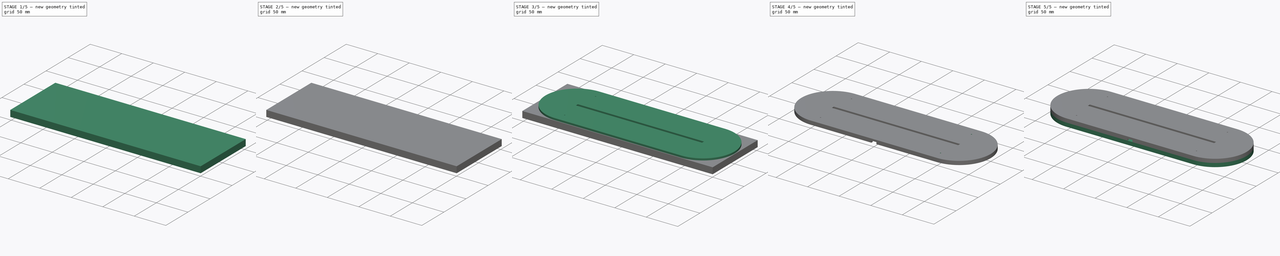
[diagram: build sequence overview — one tinted view per stage of 5, left to right]
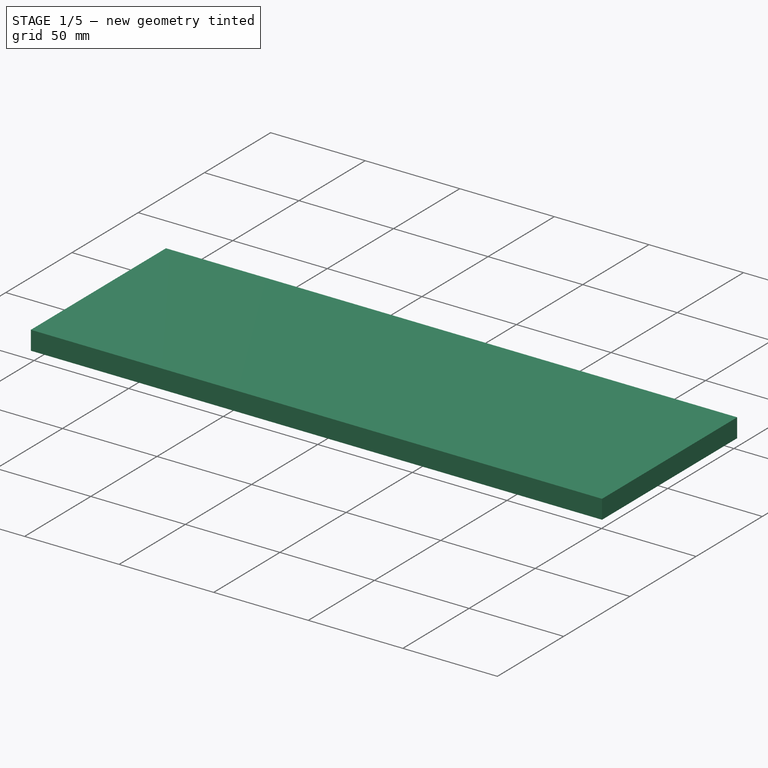
[diagram: stage 1 of 5 — iso view after this stage's code; geometry added in this stage tinted green]
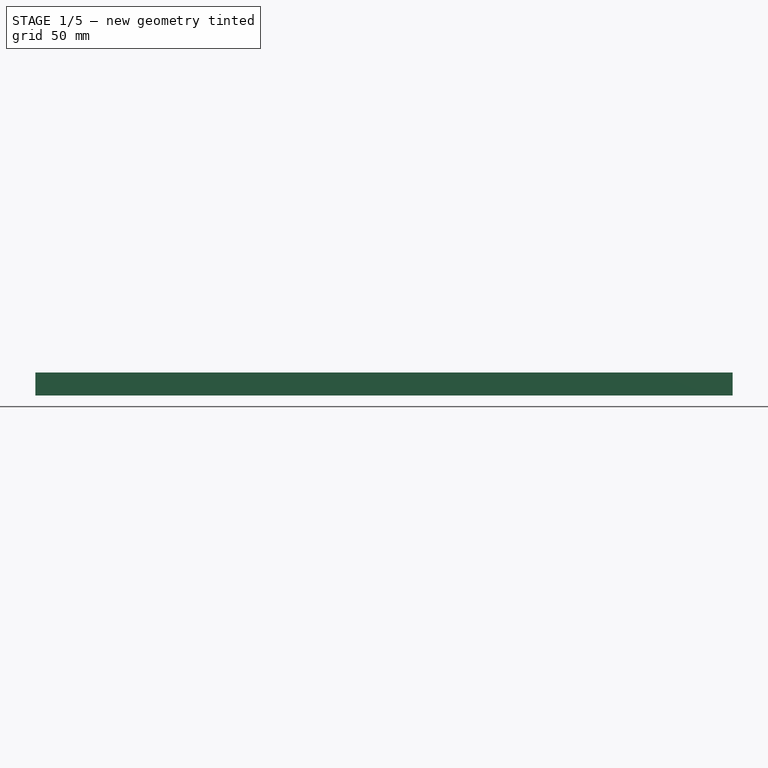
[diagram: stage 1 of 5 — front view after this stage's code; geometry added in this stage tinted green]
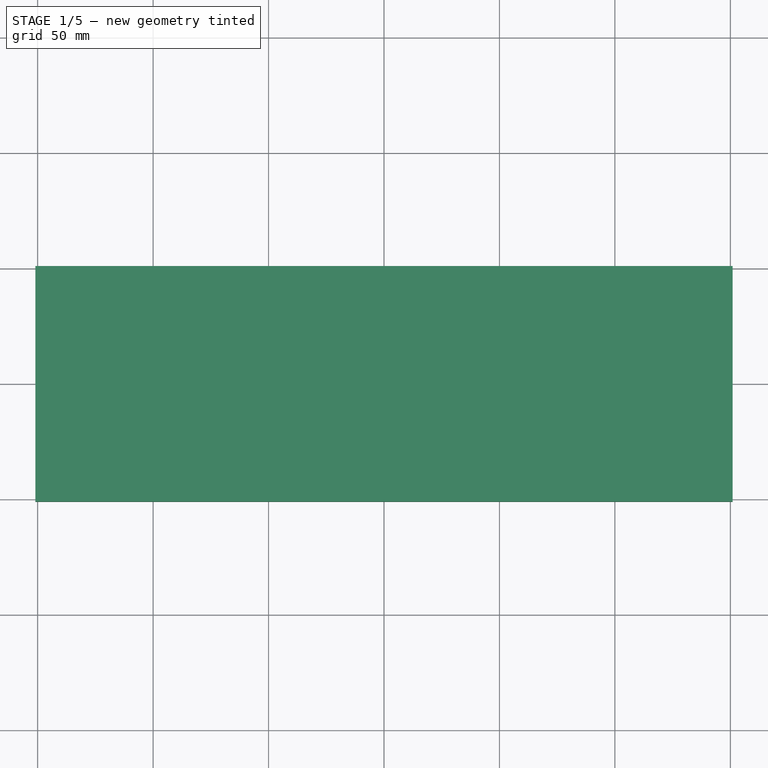
[diagram: stage 1 of 5 — top view after this stage's code; geometry added in this stage tinted green]
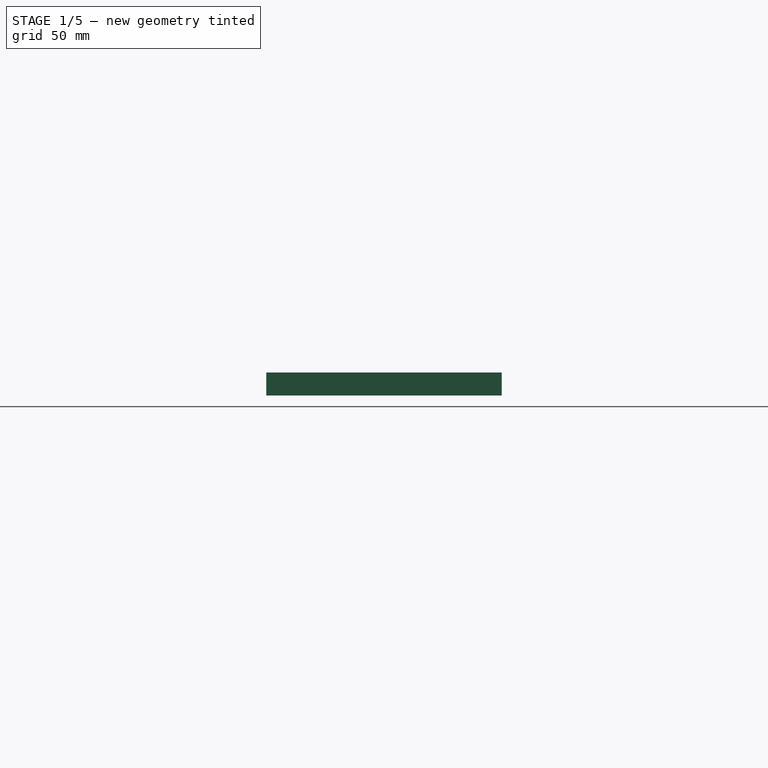
[diagram: stage 1 of 5 — right view after this stage's code; geometry added in this stage tinted green]
FCSTD DOCUMENT  (FreeCAD 0.17R13541 (Git))
Label: Acry-Base-12-10mm-LED-Slot-Crylic-Sloted-D1-Mini-Spot-nestled-Wire-Slot-biggered-UnderTuck-USB-Top-12mm-Screw-Holes-Mirrored-alt-LaserSect
License: All rights reserved
LicenseURL: http://en.wikipedia.org/wiki/All_rights_reserved
objects: Sketcher::SketchObject×10, PartDesign::Pocket×6, PartDesign::Pad×4, Part::Feature×4, Part::Box×3, Part::MultiCommon×3, Part::Cut×3, PartDesign::Mirrored×1, PartDesign::Body×1, App::Part×1, App::DocumentObjectGroup×1
note: 45 computed .brp shape members not serialized (recipe doc carries the construction recipe); baked Part::Feature solids carry a one-line shape summary decoded from their .brp

FEATURE [Sketcher::SketchObject] Sketch
  MapMode = 5
  Support = -> [XY_Plane001]
  sketch-geometry (5):
    g0: ArcOfCircle CenterX=-100 CenterY=0 CenterZ=0 NormalX=0 NormalY=0 NormalZ=1 AngleXU=0 Radius=50 StartAngle=1.5708 EndAngle=4.71239
    g1: ArcOfCircle CenterX=100 CenterY=-1e-12 CenterZ=0 NormalX=0 NormalY=0 NormalZ=1 AngleXU=0 Radius=50 StartAngle=4.71239 EndAngle=7.85398
    g2: LineSegment StartX=-100 StartY=-50 StartZ=0 EndX=100 EndY=-50 EndZ=0
    g3: LineSegment StartX=-100 StartY=50 StartZ=0 EndX=100 EndY=50 EndZ=0
    g4: GeomPoint X=0 Y=-50 Z=0
  constraints (12):
    c: Tangent(g0,g3) = 1.5708
    c: Tangent(g0,g2) = -1.5708
    c: Tangent(g2,g1) = -1.5708
    c: Tangent(g3,g1) = 1.5708
    c: Horizontal(g2)
    c: Equal(g0,g1)
    c: Distance(g1,g0) = 200
    c: Distance(g1,g1) = 50
    c: PointOnObject(g4,g2)
    c: Symmetric(g1,g0,g4)
    c: PointOnObject(g4,g-2)
    c: PointOnObject(g0,g-1)
FEATURE [PartDesign::Pad] Pad
  Length = 3
  Length2 = 100
  Profile = -> Sketch
  Type = 0
FEATURE [Sketcher::SketchObject] Sketch001
  ExternalGeometry = -> [Pad]
  MapMode = 5
  Placement = pos=(0,0,3) rot=(0,0,1;0rad)
  Support = -> [Pad]
  sketch-geometry (8):
    g0: ArcOfCircle CenterX=-100 CenterY=-1e-12 CenterZ=0 NormalX=0 NormalY=0 NormalZ=1 AngleXU=0 Radius=50 StartAngle=1.5708 EndAngle=4.71239
    g1: ArcOfCircle CenterX=100 CenterY=-1e-12 CenterZ=0 NormalX=0 NormalY=0 NormalZ=1 AngleXU=0 Radius=50 StartAngle=4.71239 EndAngle=7.85398
    g2: LineSegment StartX=-100 StartY=-50 StartZ=0 EndX=100 EndY=-50 EndZ=0
    g3: LineSegment StartX=-100 StartY=50 StartZ=0 EndX=100 EndY=50 EndZ=0
    g4: ArcOfCircle CenterX=-100 CenterY=-1e-12 CenterZ=0 NormalX=0 NormalY=0 NormalZ=1 AngleXU=0 Radius=5 StartAngle=1.5708 EndAngle=4.71239
    g5: ArcOfCircle CenterX=100 CenterY=-1e-12 CenterZ=0 NormalX=0 NormalY=0 NormalZ=1 AngleXU=0 Radius=5 StartAngle=4.71239 EndAngle=7.85398
    g6: LineSegment StartX=-100 StartY=-5 StartZ=0 EndX=100 EndY=-5 EndZ=0
    g7: LineSegment StartX=-100 StartY=5 StartZ=0 EndX=100 EndY=5 EndZ=0
  constraints (17):
    c: Tangent(g0,g3) = 1.5708
    c: Tangent(g0,g2) = -1.5708
    c: Tangent(g2,g1) = -1.5708
    c: Tangent(g3,g1) = 1.5708
    c: Horizontal(g2)
    c: Equal(g0,g1)
    c: Coincident(g0,g-4)
    c: Coincident(g1,g-3)
    c: Tangent(g4,g7) = 1.5708
    c: Tangent(g4,g6) = -1.5708
    c: Tangent(g6,g5) = -1.5708
    c: Tangent(g7,g5) = 1.5708
    c: Horizontal(g6)
    c: Equal(g4,g5)
    c: Coincident(g4,g0)
    c: Coincident(g5,g1)
    c: Distance(g5,g5) = 10
FEATURE [PartDesign::Pad] Pad001
  BaseFeature = -> Pad
  Length = 3
  Length2 = 100
  Profile = -> Sketch001
  Type = 0
FEATURE [PartDesign::Body] Body
  Group = -> [Sketch,Pad,Sketch001,Pad001,Sketch002,Pad002,Sketch003,Pocket,Sketch004,Pocket001,Sketch005,Pocket002,Sketch006,Pocket003,Sketch007,Pocket004,Sketch008,Pad003,Sketch009,Pocket005,Mirrored]
  Origin = -> Origin001
  Tip = -> Mirrored
FEATURE [App::Part] Part
  Group = -> [Body]
  License = CC BY 3.0
  LicenseURL = http://creativecommons.org/licenses/by/3.0/
  Origin = -> Origin
FEATURE [Part::Box] box_bottom_half_0
  AttacherType = Attacher::AttachEngine3D
  Height = 7
  Length = 301.986
  Placement = pos=(-150.993,-51,-1) rot=(0,0,1;0rad)
  Width = 102
FEATURE [Part::Box] box_bottom_half_2
  AttacherType = Attacher::AttachEngine3D
  Height = 4
  Length = 301.986
  Placement = pos=(-150.993,-51,5) rot=(0,0,1;0rad)
  Width = 102
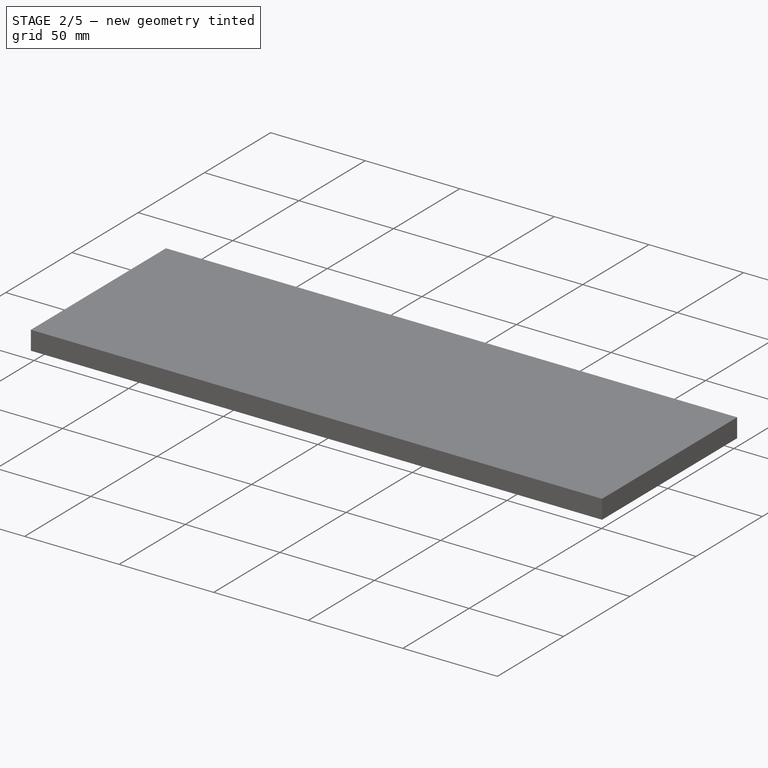
[diagram: stage 2 of 5 — iso view after this stage's code; geometry added in this stage tinted green]
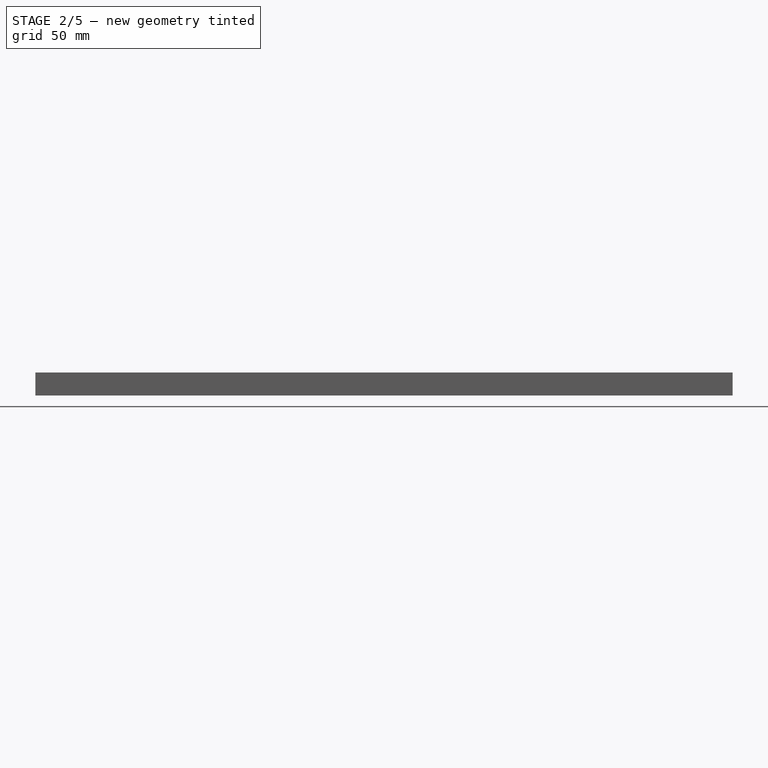
[diagram: stage 2 of 5 — front view after this stage's code; geometry added in this stage tinted green]
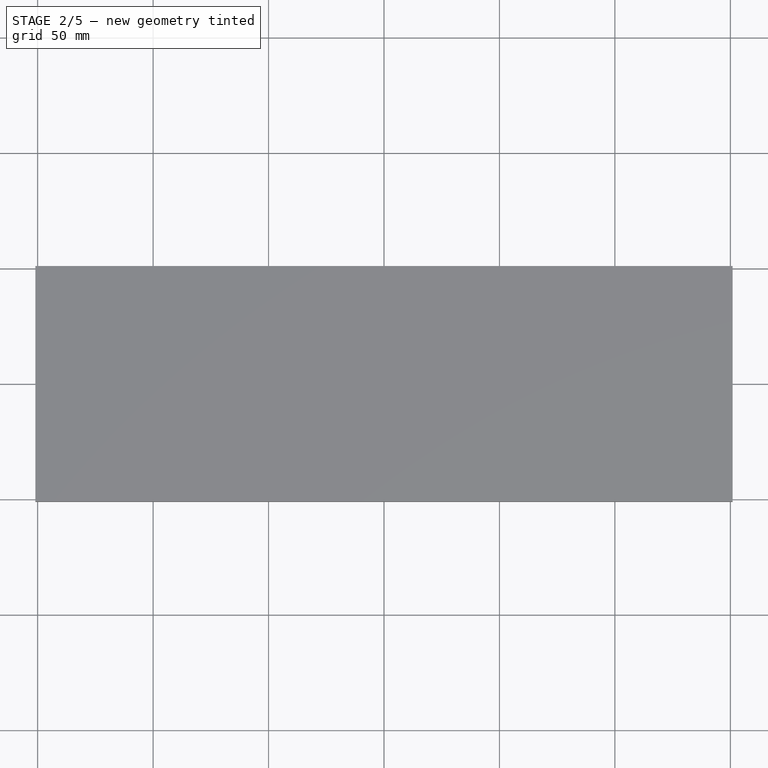
[diagram: stage 2 of 5 — top view after this stage's code; geometry added in this stage tinted green]
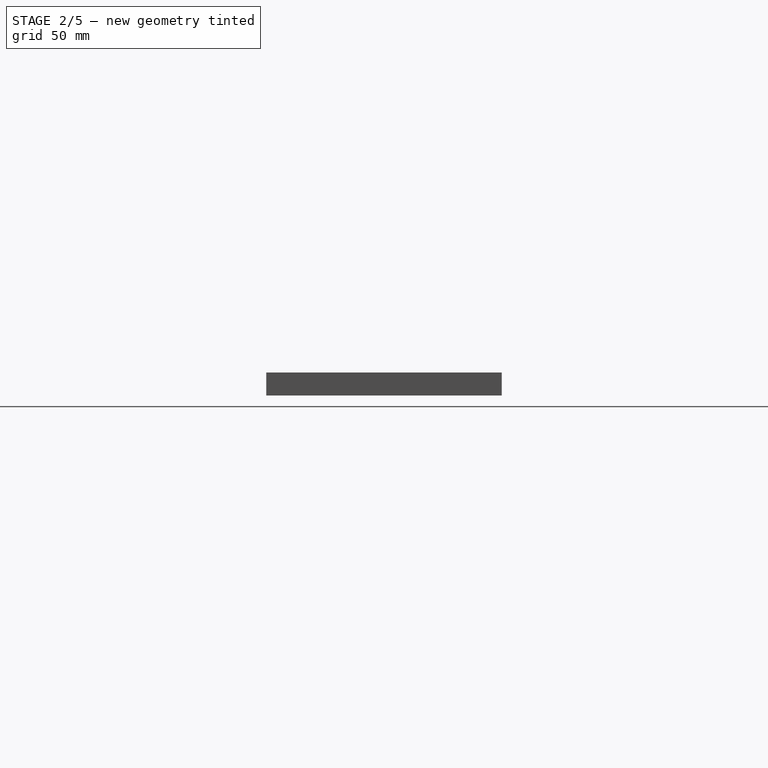
[diagram: stage 2 of 5 — right view after this stage's code; geometry added in this stage tinted green]
FEATURE [Sketcher::SketchObject] Sketch002
  ExternalGeometry = -> [Pad001]
  MapMode = 5
  Placement = pos=(0,0,6) rot=(0,0,1;0rad)
  Support = -> [Pad001]
  sketch-geometry (8):
    g0: ArcOfCircle CenterX=-100 CenterY=-1e-12 CenterZ=0 NormalX=0 NormalY=0 NormalZ=1 AngleXU=0 Radius=50 StartAngle=1.5708 EndAngle=4.71239
    g1: ArcOfCircle CenterX=100 CenterY=-1e-12 CenterZ=0 NormalX=0 NormalY=0 NormalZ=1 AngleXU=0 Radius=50 StartAngle=4.71239 EndAngle=7.85398
    g2: LineSegment StartX=-100 StartY=-50 StartZ=0 EndX=100 EndY=-50 EndZ=0
    g3: LineSegment StartX=-100 StartY=50 StartZ=0 EndX=100 EndY=50 EndZ=0
    g4: LineSegment StartX=-104.542 StartY=2.09 StartZ=0 EndX=104.542 EndY=2.09 EndZ=0
    g5: LineSegment StartX=104.542 StartY=2.09 StartZ=0 EndX=104.542 EndY=-2.09 EndZ=0
    g6: LineSegment StartX=104.542 StartY=-2.09 StartZ=0 EndX=-104.542 EndY=-2.09 EndZ=0
    g7: LineSegment StartX=-104.542 StartY=-2.09 StartZ=0 EndX=-104.542 EndY=2.09 EndZ=0
  constraints (20):
    c: Tangent(g0,g3) = 1.5708
    c: Tangent(g0,g2) = -1.5708
    c: Tangent(g2,g1) = -1.5708
    c: Tangent(g3,g1) = 1.5708
    c: Horizontal(g2)
    c: Equal(g0,g1)
    c: Coincident(g0,g-3)
    c: Coincident(g1,g-4)
    c: Coincident(g4,g5)
    c: Coincident(g5,g6)
    c: Coincident(g6,g7)
    c: Coincident(g7,g4)
    c: Horizontal(g4)
    c: Horizontal(g6)
    c: Vertical(g5)
    c: Vertical(g7)
    c: PointOnObject(g4,g-5)
    c: PointOnObject(g5,g-6)
    c: PointOnObject(g6,g-5)
    c: Distance(g4,g6) = 4.18
FEATURE [PartDesign::Pad] Pad002
  BaseFeature = -> Pad001
  Length = 3
  Length2 = 100
  Profile = -> Sketch002
  Type = 0
FEATURE [Sketcher::SketchObject] Sketch003
  ExternalGeometry = -> [Pad002]
  MapMode = 5
  Placement = pos=(0,0,9) rot=(0,0,1;0rad)
  Support = -> [Pad002]
  sketch-geometry (5):
    g0: LineSegment StartX=-13.15 StartY=-12.8 StartZ=0 EndX=13.15 EndY=-12.8 EndZ=0
    g1: LineSegment StartX=13.15 StartY=-12.8 StartZ=0 EndX=13.15 EndY=-47 EndZ=0
    g2: LineSegment StartX=13.15 StartY=-47 StartZ=0 EndX=-13.15 EndY=-47 EndZ=0
    g3: LineSegment StartX=-13.15 StartY=-47 StartZ=0 EndX=-13.15 EndY=-12.8 EndZ=0
    g4: GeomPoint X=0 Y=-12.8 Z=0
  constraints (14):
    c: Coincident(g0,g1)
    c: Coincident(g1,g2)
    c: Coincident(g2,g3)
    c: Coincident(g3,g0)
    c: Horizontal(g0)
    c: Horizontal(g2)
    c: Vertical(g1)
    c: Vertical(g3)
    c: Distance(g1) = 34.2
    c: Distance(g0) = 26.3
    c: PointOnObject(g4,g0)
    c: Symmetric(g0,g0,g4)
    c: PointOnObject(g4,g-2)
    c: Distance(g1,g-3) = 3
FEATURE [PartDesign::Pocket] Pocket
  BaseFeature = -> Pad002
  Length = 3
  Length2 = 100
  Profile = -> Sketch003
  Type = 0
FEATURE [Sketcher::SketchObject] Sketch004
  ExternalGeometry = -> [Pocket]
  MapMode = 5
  Placement = pos=(0,0,6) rot=(0,0,1;0rad)
  Support = -> [Pocket]
  sketch-geometry (5):
    g0: LineSegment StartX=-9 StartY=-12.8 StartZ=0 EndX=9 EndY=-12.8 EndZ=0
    g1: LineSegment StartX=9 StartY=-12.8 StartZ=0 EndX=9 EndY=-37.8 EndZ=0
    g2: LineSegment StartX=9 StartY=-37.8 StartZ=0 EndX=-9 EndY=-37.8 EndZ=0
    g3: LineSegment StartX=-9 StartY=-37.8 StartZ=0 EndX=-9 EndY=-12.8 EndZ=0
    g4: GeomPoint X=0 Y=-37.8 Z=0
  constraints (14):
    c: Coincident(g0,g1)
    c: Coincident(g1,g2)
    c: Coincident(g2,g3)
    c: Coincident(g3,g0)
    c: Horizontal(g0)
    c: Horizontal(g2)
    c: Vertical(g1)
    c: Vertical(g3)
    c: Distance(g0) = 18
    c: Distance(g1) = 25
    c: PointOnObject(g4,g2)
    c: Symmetric(g2,g1,g4)
    c: PointOnObject(g4,g-2)
    c: PointOnObject(g0,g-3)
FEATURE [PartDesign::Pocket] Pocket001
  BaseFeature = -> Pocket
  Length = 3
  Length2 = 100
  Profile = -> Sketch004
  Type = 0
FEATURE [Sketcher::SketchObject] Sketch005
  ExternalGeometry = -> [Pocket001]
  MapMode = 5
  Placement = pos=(0,0,9) rot=(0,0,1;0rad)
  Support = -> [Pocket001]
  sketch-geometry (5):
    g0: LineSegment StartX=-7 StartY=-7.8 StartZ=0 EndX=7 EndY=-7.8 EndZ=0
    g1: LineSegment StartX=7 StartY=-7.8 StartZ=0 EndX=7 EndY=-12.8 EndZ=0
    g2: LineSegment StartX=7 StartY=-12.8 StartZ=0 EndX=-7 EndY=-12.8 EndZ=0
    g3: LineSegment StartX=-7 StartY=-12.8 StartZ=0 EndX=-7 EndY=-7.8 EndZ=0
    g4: GeomPoint X=0 Y=-12.8 Z=0
  constraints (14):
    c: Coincident(g0,g1)
    c: Coincident(g1,g2)
    c: Coincident(g2,g3)
    c: Coincident(g3,g0)
    c: Horizontal(g0)
    c: Horizontal(g2)
    c: Vertical(g1)
    c: Vertical(g3)
    c: Distance(g0) = 14
    c: Distance(g3) = 5
    c: PointOnObject(g1,g-3)
    c: PointOnObject(g4,g2)
    c: Symmetric(g1,g2,g4)
    c: PointOnObject(g4,g-2)
FEATURE [PartDesign::Pocket] Pocket002
  BaseFeature = -> Pocket001
  Length = 6
  Length2 = 100
  Profile = -> Sketch005
  Type = 0
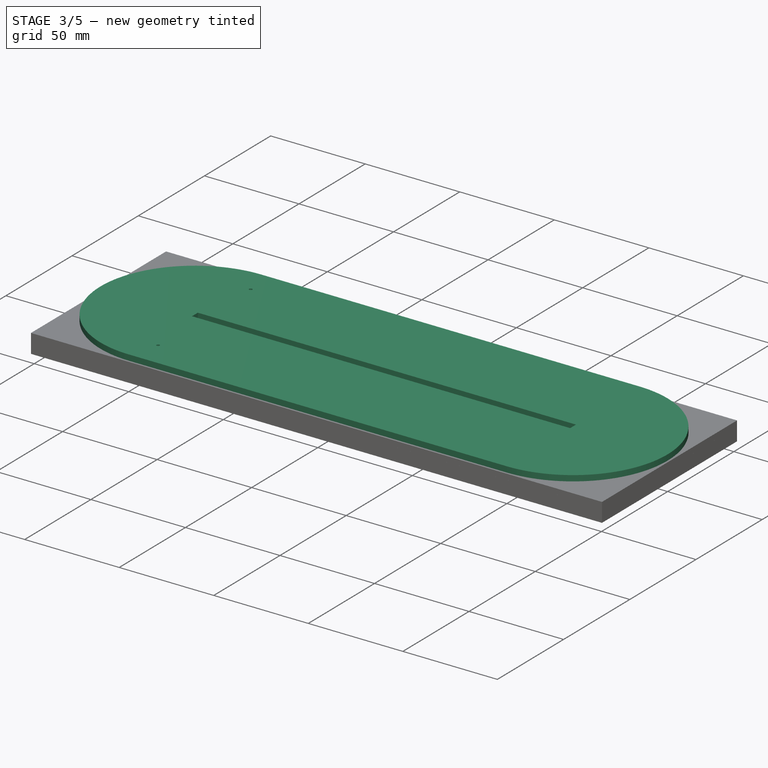
[diagram: stage 3 of 5 — iso view after this stage's code; geometry added in this stage tinted green]
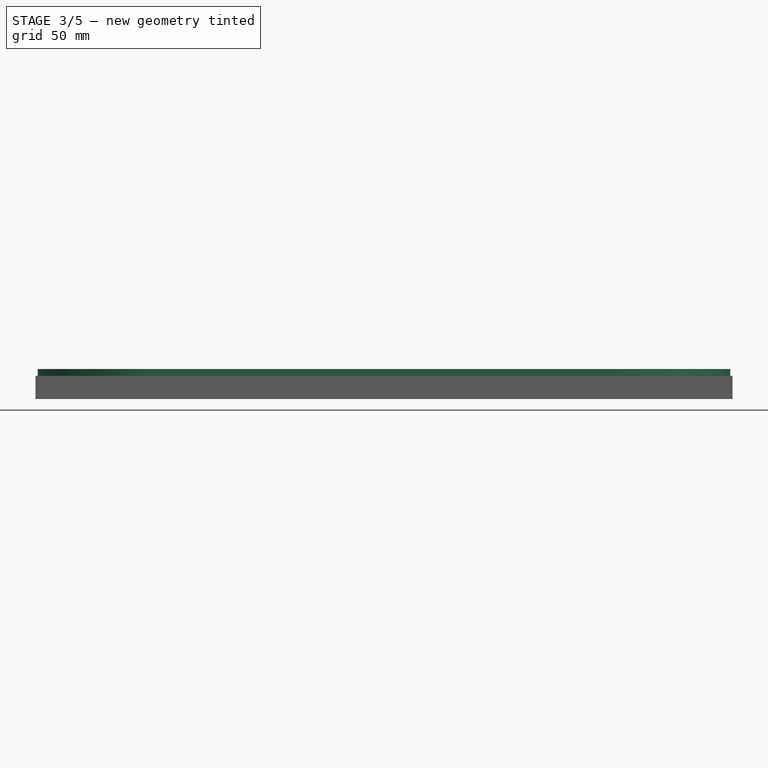
[diagram: stage 3 of 5 — front view after this stage's code; geometry added in this stage tinted green]
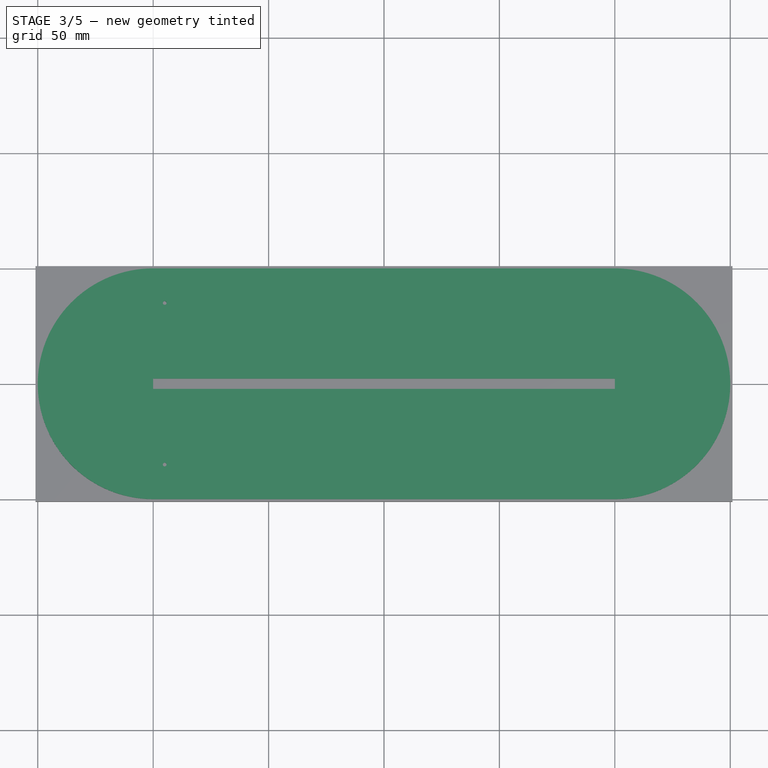
[diagram: stage 3 of 5 — top view after this stage's code; geometry added in this stage tinted green]
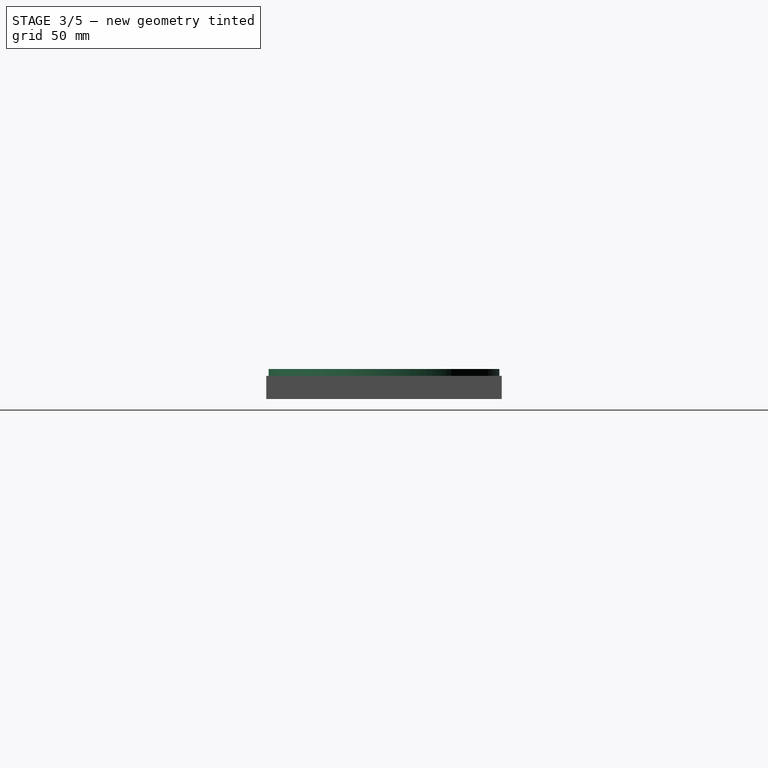
[diagram: stage 3 of 5 — right view after this stage's code; geometry added in this stage tinted green]
FEATURE [Sketcher::SketchObject] Sketch006
  ExternalGeometry = -> [Pocket002]
  MapMode = 5
  Placement = pos=(0,-7.8,0) rot=(1,0,0;1.5708rad)
  Support = -> [Pocket002]
  sketch-geometry (4):
    g0: LineSegment StartX=-7 StartY=6 StartZ=0 EndX=7 EndY=6 EndZ=0
    g1: LineSegment StartX=7 StartY=6 StartZ=0 EndX=7 EndY=3 EndZ=0
    g2: LineSegment StartX=7 StartY=3 StartZ=0 EndX=-7 EndY=3 EndZ=0
    g3: LineSegment StartX=-7 StartY=3 StartZ=0 EndX=-7 EndY=6 EndZ=0
  constraints (10):
    c: Coincident(g0,g1)
    c: Coincident(g1,g2)
    c: Coincident(g2,g3)
    c: Coincident(g3,g0)
    c: Horizontal(g0)
    c: Horizontal(g2)
    c: Vertical(g1)
    c: Vertical(g3)
    c: Coincident(g0,g-3)
    c: Coincident(g1,g-4)
FEATURE [PartDesign::Pocket] Pocket003
  BaseFeature = -> Pocket002
  Length = 3
  Length2 = 100
  Profile = -> Sketch006
  Type = 0
FEATURE [Sketcher::SketchObject] Sketch007
  ExternalGeometry = -> [Pocket003]
  MapMode = 5
  Placement = pos=(0,0,9) rot=(0,0,1;0rad)
  Support = -> [Pocket003]
  sketch-geometry (5):
    g0: LineSegment StartX=-4 StartY=-47 StartZ=0 EndX=4 EndY=-47 EndZ=0
    g1: LineSegment StartX=4 StartY=-47 StartZ=0 EndX=4 EndY=-50 EndZ=0
    g2: LineSegment StartX=4 StartY=-50 StartZ=0 EndX=-4 EndY=-50 EndZ=0
    g3: LineSegment StartX=-4 StartY=-50 StartZ=0 EndX=-4 EndY=-47 EndZ=0
    g4: GeomPoint X=0 Y=-47 Z=0
  constraints (14):
    c: Coincident(g0,g1)
    c: Coincident(g1,g2)
    c: Coincident(g2,g3)
    c: Coincident(g3,g0)
    c: Horizontal(g0)
    c: Horizontal(g2)
    c: Vertical(g1)
    c: Vertical(g3)
    c: PointOnObject(g0,g-3)
    c: PointOnObject(g1,g-4)
    c: Distance(g0) = 8
    c: PointOnObject(g4,g0)
    c: Symmetric(g0,g0,g4)
    c: PointOnObject(g4,g-2)
FEATURE [PartDesign::Pocket] Pocket004
  BaseFeature = -> Pocket003
  Length = 3
  Length2 = 100
  Profile = -> Sketch007
  Type = 0
FEATURE [Sketcher::SketchObject] Sketch008
  ExternalGeometry = -> [Pocket004]
  MapMode = 5
  Placement = pos=(0,0,9) rot=(0,0,1;0rad)
  Support = -> [Pocket004]
  sketch-geometry (10):
    g0: ArcOfCircle CenterX=-100 CenterY=-1e-12 CenterZ=0 NormalX=0 NormalY=0 NormalZ=1 AngleXU=0 Radius=50 StartAngle=1.5708 EndAngle=4.71239
    g1: ArcOfCircle CenterX=100 CenterY=-1e-12 CenterZ=0 NormalX=0 NormalY=0 NormalZ=1 AngleXU=0 Radius=50 StartAngle=4.71239 EndAngle=7.85398
    g2: LineSegment StartX=-100 StartY=-50 StartZ=0 EndX=100 EndY=-50 EndZ=0
    g3: LineSegment StartX=-100 StartY=50 StartZ=0 EndX=100 EndY=50 EndZ=0
    g4: LineSegment StartX=-100 StartY=2.2 StartZ=0 EndX=100 EndY=2.2 EndZ=0
    g5: LineSegment StartX=100 StartY=2.2 StartZ=0 EndX=100 EndY=-2.2 EndZ=0
    g6: LineSegment StartX=100 StartY=-2.2 StartZ=0 EndX=-100 EndY=-2.2 EndZ=0
    g7: LineSegment StartX=-100 StartY=-2.2 StartZ=0 EndX=-100 EndY=2.2 EndZ=0
    g8: GeomPoint X=0 Y=2.2 Z=0
    g9: GeomPoint X=-100 Y=0 Z=0
  constraints (24):
    c: Tangent(g0,g3) = 1.5708
    c: Tangent(g0,g2) = -1.5708
    c: Tangent(g2,g1) = -1.5708
    c: Tangent(g3,g1) = 1.5708
    c: Horizontal(g2)
    c: Equal(g0,g1)
    c: Coincident(g0,g-3)
    c: Coincident(g1,g-4)
    c: Coincident(g4,g5)
    c: Coincident(g5,g6)
    c: Coincident(g6,g7)
    c: Coincident(g7,g4)
    c: Horizontal(g4)
    c: Horizontal(g6)
    c: Vertical(g5)
    c: Vertical(g7)
    c: Distance(g4) = 200
    c: Distance(g5) = 4.4
    c: PointOnObject(g8,g4)
    c: PointOnObject(g9,g7)
    c: Symmetric(g4,g6,g9)
    c: Symmetric(g4,g4,g8)
    c: PointOnObject(g8,g-2)
    c: PointOnObject(g9,g-1)
FEATURE [PartDesign::Pad] Pad003
  BaseFeature = -> Pocket004
  Length = 3
  Length2 = 100
  Profile = -> Sketch008
  Type = 0
FEATURE [Sketcher::SketchObject] Sketch009
  MapMode = 5
  Placement = pos=(0,0,0) rot=(1,0,0;3.14159rad)
  Support = -> [Pad003]
  sketch-geometry (3):
    g0: Circle CenterX=-95 CenterY=35 CenterZ=0 NormalX=0 NormalY=0 NormalZ=1 AngleXU=0 Radius=0.8
    g1: Circle CenterX=-95 CenterY=-35 CenterZ=0 NormalX=0 NormalY=0 NormalZ=1 AngleXU=0 Radius=0.8
    g2: GeomPoint X=-95.6063 Y=35.522 Z=0
  constraints (7):
    c: PointOnObject(g2,g0)
    c: Distance(g0,g2) = 0.8
    c: Equal(g0,g1)
    c: Distance(g0,g-2) = 95
    c: Distance(g0,g-1) = 35
    c: Distance(g1,g-2) = 95
    c: Distance(g1,g-1) = 35
FEATURE [PartDesign::Pocket] Pocket005
  BaseFeature = -> Pad003
  Length = 12
  Length2 = 100
  Profile = -> Sketch009
  Type = 1
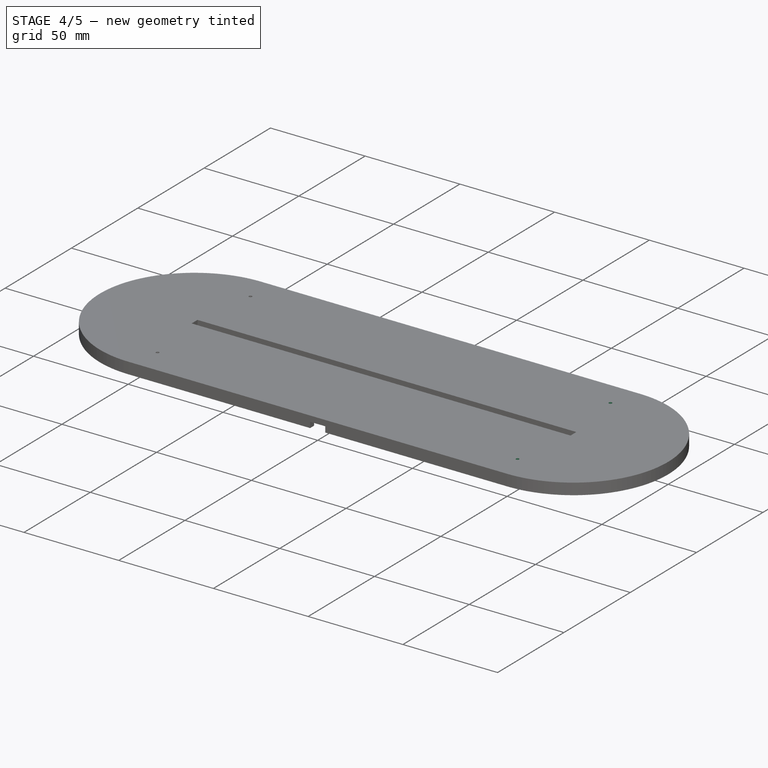
[diagram: stage 4 of 5 — iso view after this stage's code; geometry added in this stage tinted green]
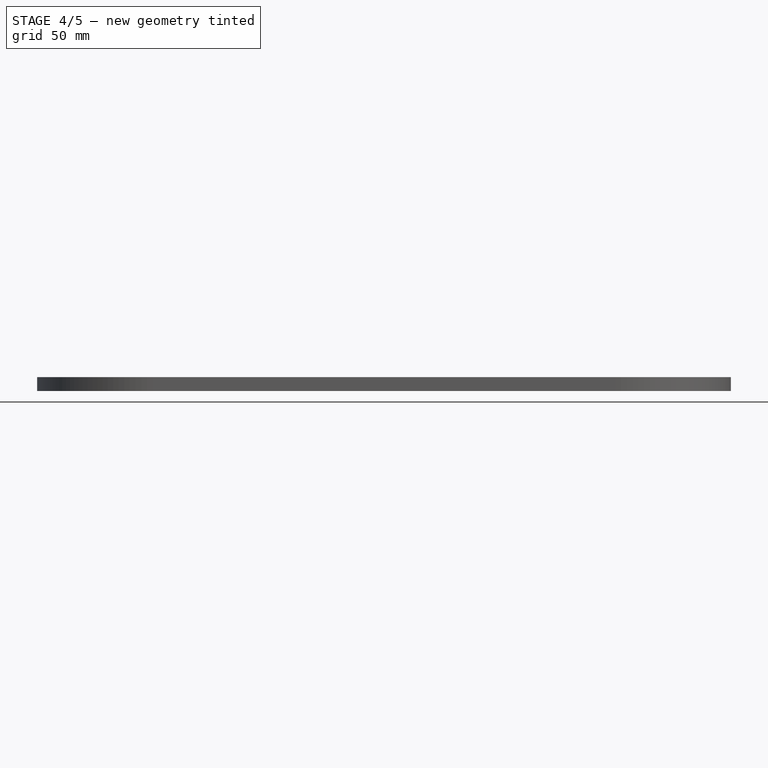
[diagram: stage 4 of 5 — front view after this stage's code; geometry added in this stage tinted green]
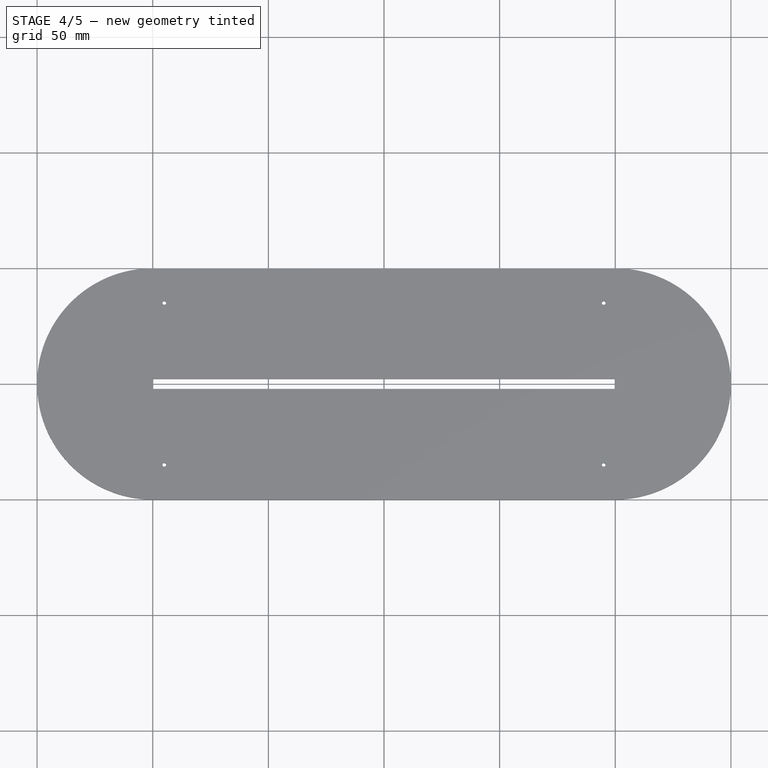
[diagram: stage 4 of 5 — top view after this stage's code; geometry added in this stage tinted green]
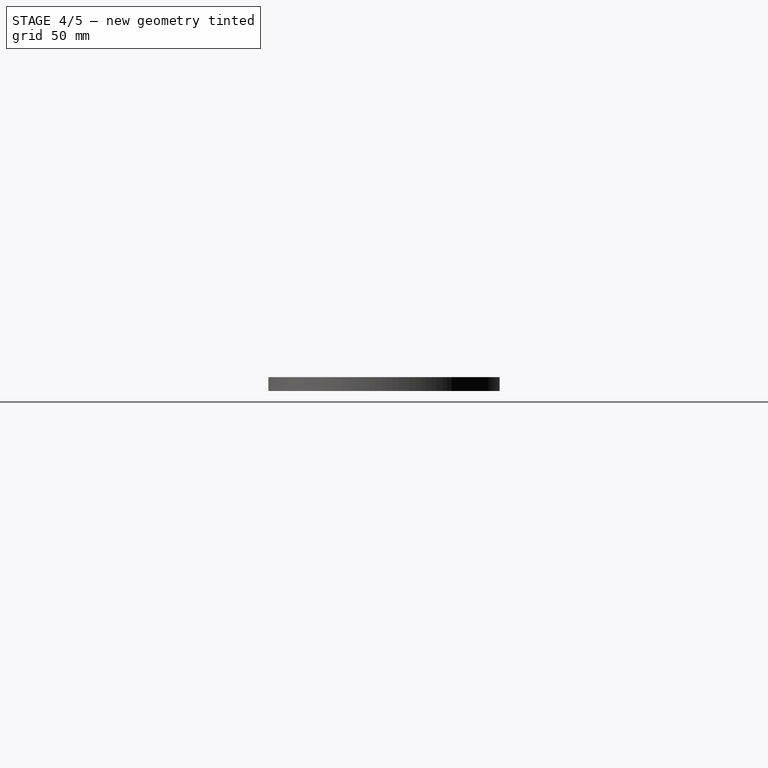
[diagram: stage 4 of 5 — right view after this stage's code; geometry added in this stage tinted green]
FEATURE [PartDesign::Mirrored] Mirrored
  BaseFeature = -> Pocket005
  MirrorPlane = -> Sketch009 [V_Axis]
  Originals = -> [Pocket005]
FEATURE [Part::Cut] top_half_0
  Base = -> Body
  Tool = -> box_bottom_half_0
FEATURE [Part::MultiCommon] bottom_half_2
  Shapes = -> [top_half_0,box_bottom_half_2]
FEATURE [Part::Cut] top_half_2
  Base = -> top_half_0
  Tool = -> box_bottom_half_2
FEATURE [Part::Feature] MyLayer
  Placement = pos=(0,0,-1.5) rot=(0,0,1;0rad)
  shape: bbox 300 x 100 x 3e-07 mm, 0 faces, 0 solids (baked)
FEATURE [Part::Feature] MyLayer001
  Placement = pos=(304.986,0,-4.5) rot=(0,0,1;0rad)
  shape: bbox 300 x 100 x 3e-07 mm, 0 faces, 0 solids (baked)
FEATURE [Part::Feature] MyLayer002
  Placement = pos=(0,105,-7.5) rot=(0,0,1;0rad)
  shape: bbox 300 x 100 x 3e-07 mm, 0 faces, 0 solids (baked)
FEATURE [Part::Feature] MyLayer003
  Placement = pos=(304.986,105,-10.5) rot=(0,0,1;0rad)
  shape: bbox 300 x 100 x 3e-07 mm, 0 faces, 0 solids (baked)
FEATURE [App::DocumentObjectGroup] Body_Slices
  Group = -> [MyLayer,MyLayer001,MyLayer002,MyLayer003]
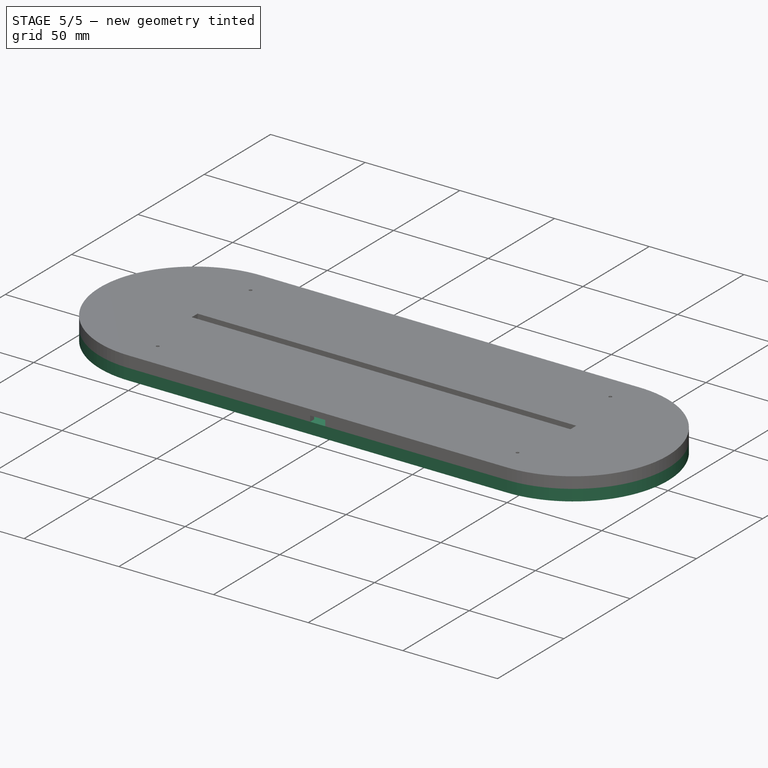
[diagram: stage 5 of 5 — iso view after this stage's code; geometry added in this stage tinted green]
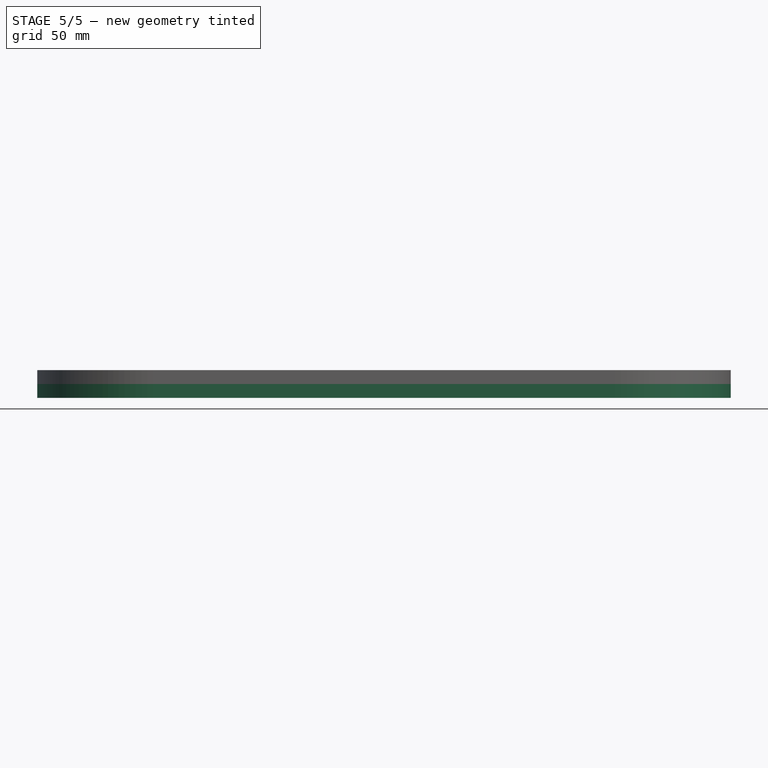
[diagram: stage 5 of 5 — front view after this stage's code; geometry added in this stage tinted green]
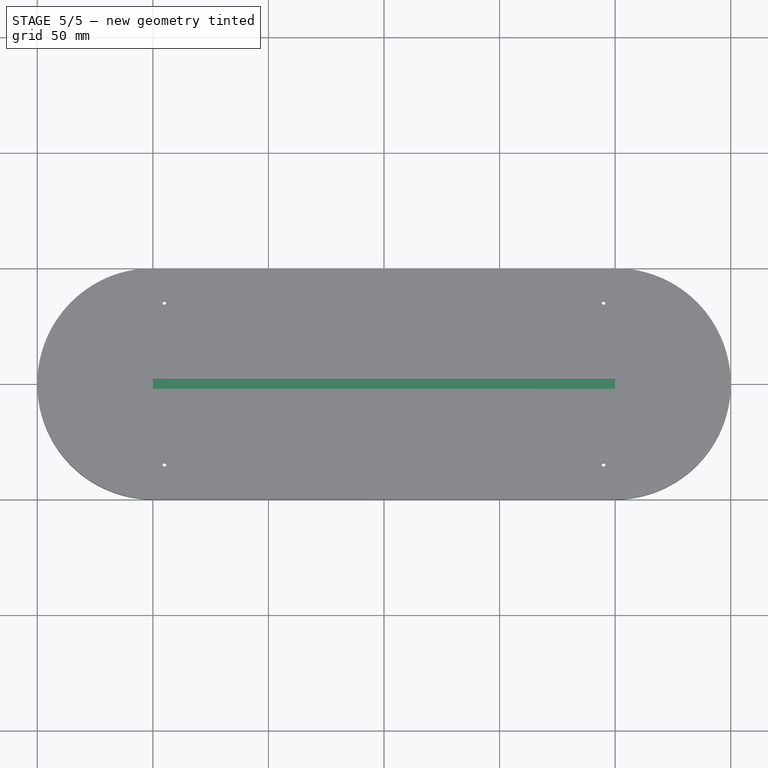
[diagram: stage 5 of 5 — top view after this stage's code; geometry added in this stage tinted green]
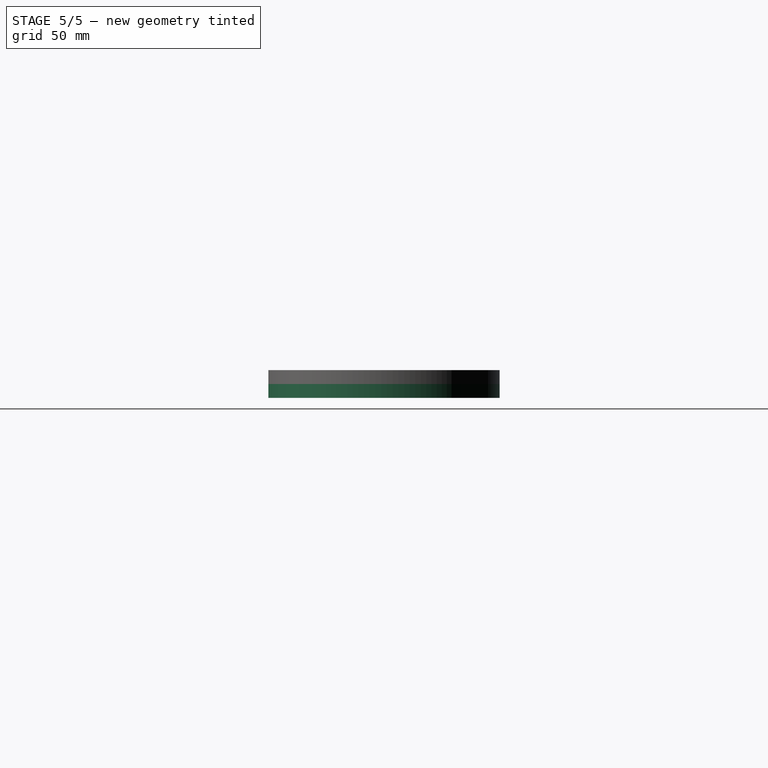
[diagram: stage 5 of 5 — right view after this stage's code; geometry added in this stage tinted green]
FEATURE [Part::MultiCommon] bottom_half_0
  Shapes = -> [Body,box_bottom_half_0]
FEATURE [Part::Box] box_bottom_half_1
  AttacherType = Attacher::AttachEngine3D
  Height = 4
  Length = 301.986
  Placement = pos=(-150.993,-51,-1) rot=(0,0,1;0rad)
  Width = 102
FEATURE [Part::MultiCommon] bottom_half_1
  Shapes = -> [bottom_half_0,box_bottom_half_1]
FEATURE [Part::Cut] top_half_1
  Base = -> bottom_half_0
  Tool = -> box_bottom_half_1
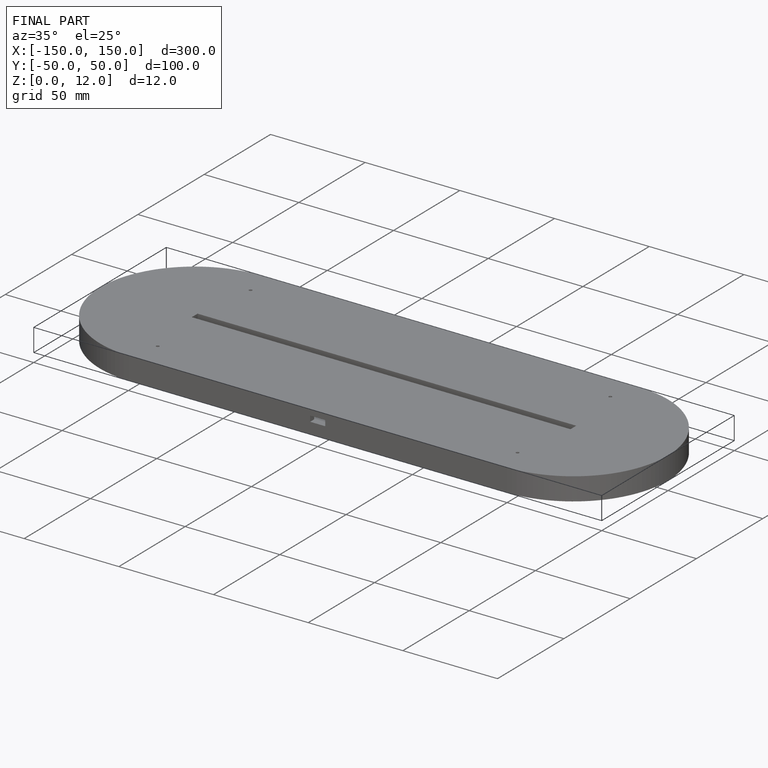
[diagram: finished part — iso view with bounding-box wireframe]
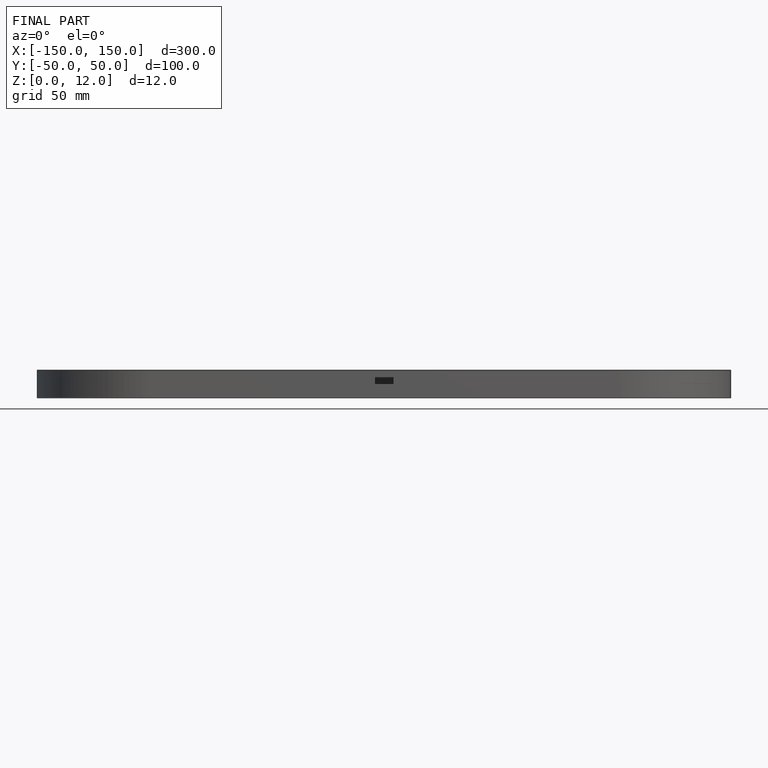
[diagram: finished part — front view with bounding-box wireframe]
